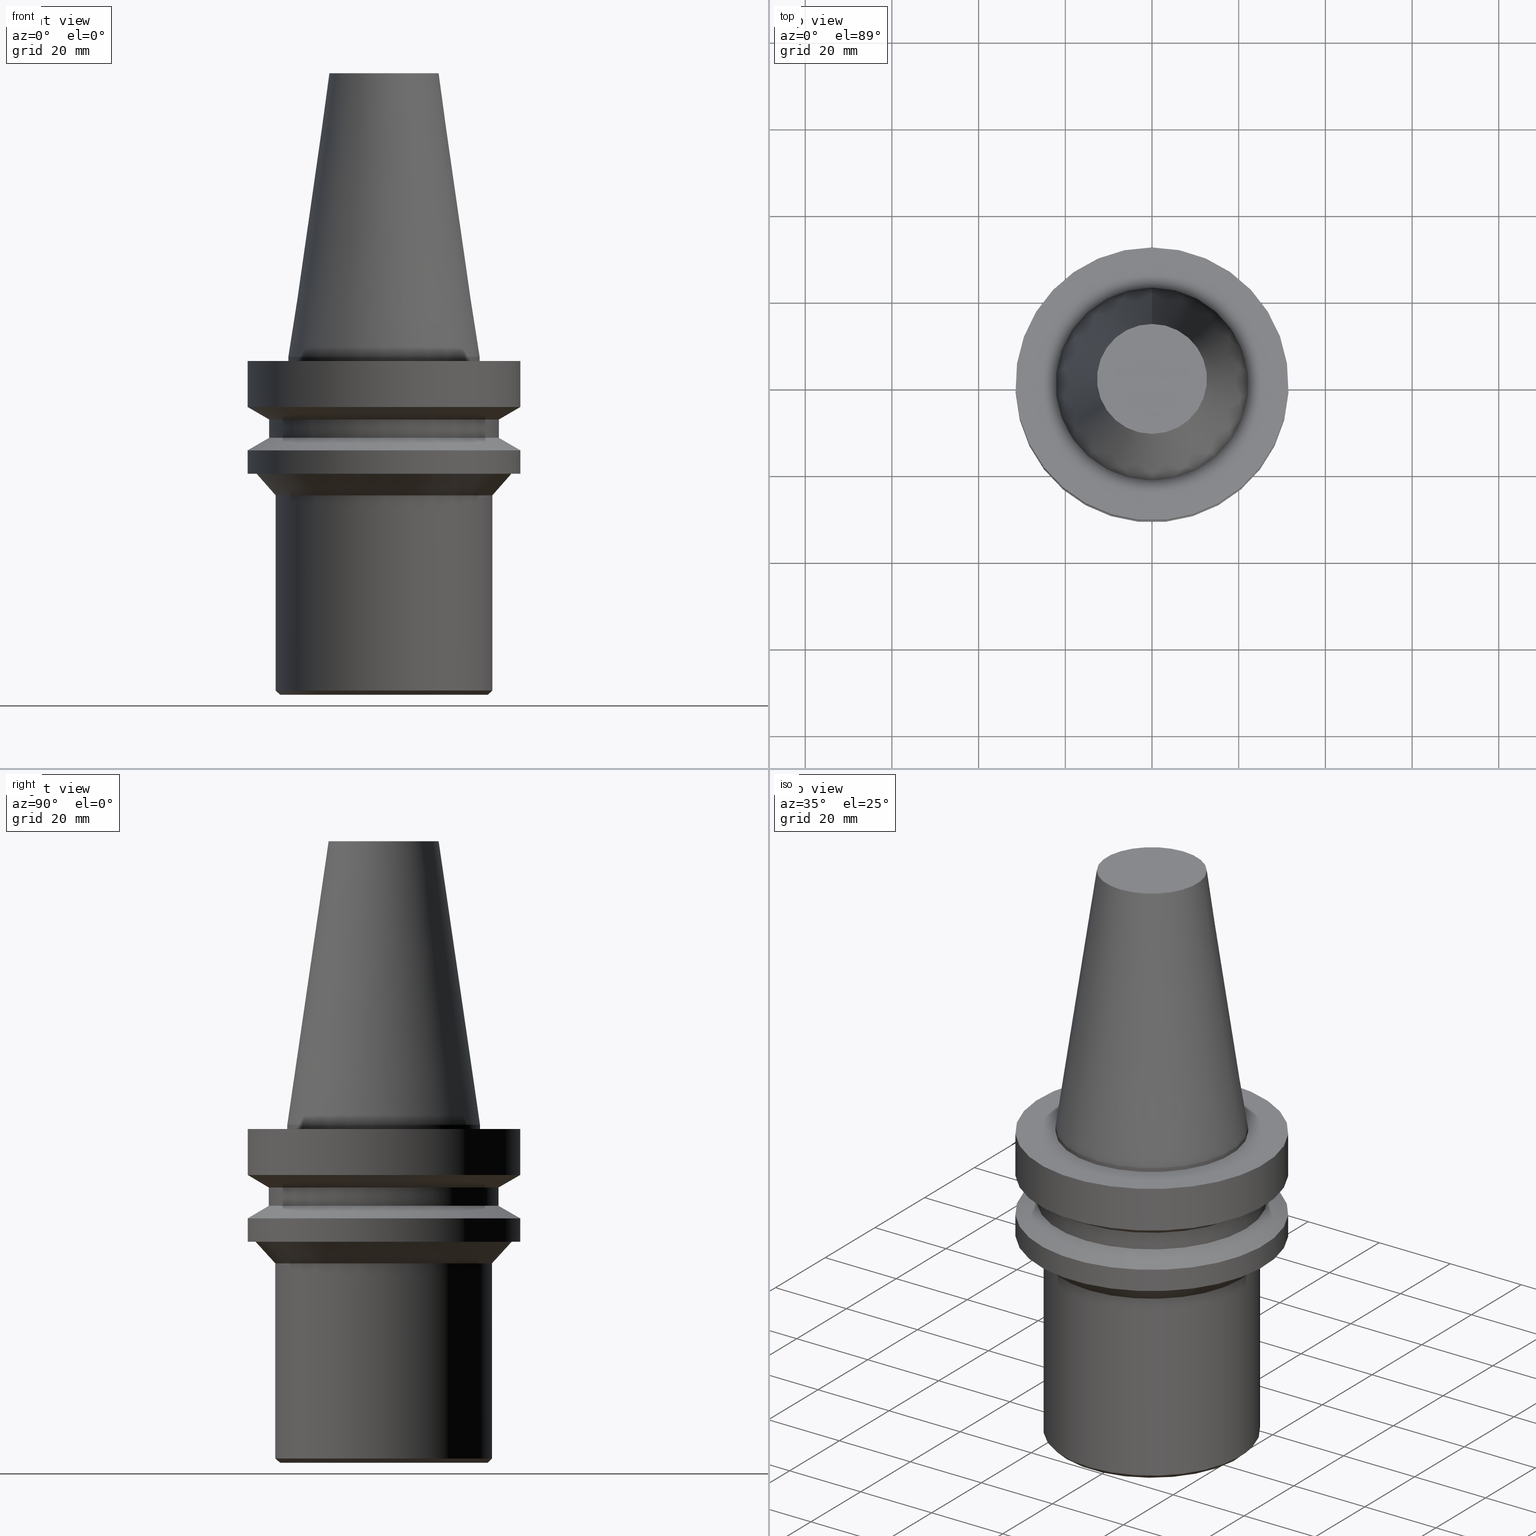
[diagram: canonical four-view strip — front | top / right | iso, engineering-drawing reading convention]
A machine part, canonical four-view strip (front | top / right | iso — engineering-drawing reading convention). The complete STEP part file that produces these views, byte-faithful:
ISO-10303-21;
HEADER;
FILE_DESCRIPTION((''),'1');
FILE_NAME('//Big_tech03/bigt/Translate/21_\X2\8F2A90ED7DDA\X0\-DXF/21_CK\X2\30DC30FC30EA30F330B030B730B930C630E0\X0\/01_CK\X2\30D930FC30B930DB30EB30C0\X0\ CK/BBT/BBT40/BBT40-CK5-135.stp','2012-05-17T02:08:52',(''),(''),'Spatial Interop R18','Kubotek KeyCreator V8.5.1 (14335)',' ');
FILE_SCHEMA(('CONFIG_CONTROL_DESIGN'));
ENDSEC;
DATA;
#1=DESIGN_CONTEXT('',#27,'design');
#2=APPLICATION_PROTOCOL_DEFINITION('INTERNATIONAL STANDARD','config_control_design',1994,#27);
#3=PRODUCT_CATEGORY_RELATIONSHIP('NONE','NONE',#28,#29);
#4=DATE_AND_TIME(#30,#31);
#5=DATE_TIME_ROLE('creation_date');
#6=DATE_TIME_ROLE('classification_date');
#7=PERSON_AND_ORGANIZATION_ROLE('creator');
#8=PERSON_AND_ORGANIZATION_ROLE('design_supplier');
#9=PERSON_AND_ORGANIZATION_ROLE('classification_officer');
#10=PERSON_AND_ORGANIZATION_ROLE('design_owner');
#11=APPROVAL_PERSON_ORGANIZATION(#32,#33,#34);
#12=APPROVAL_DATE_TIME(#4,#33);
#13=CC_DESIGN_APPROVAL(#33,(#35,#36,#37));
#14=CC_DESIGN_DATE_AND_TIME_ASSIGNMENT(#4,#5,(#37));
#15=CC_DESIGN_DATE_AND_TIME_ASSIGNMENT(#4,#6,(#35));
#16=CC_DESIGN_PERSON_AND_ORGANIZATION_ASSIGNMENT(#32,#10,(#38));
#17=CC_DESIGN_PERSON_AND_ORGANIZATION_ASSIGNMENT(#32,#7,(#37));
#18=CC_DESIGN_PERSON_AND_ORGANIZATION_ASSIGNMENT(#32,#7,(#36));
#19=CC_DESIGN_PERSON_AND_ORGANIZATION_ASSIGNMENT(#32,#8,(#36));
#20=CC_DESIGN_SECURITY_CLASSIFICATION(#35,(#36));
#21=CC_DESIGN_PERSON_AND_ORGANIZATION_ASSIGNMENT(#32,#9,(#35));
#22=SHAPE_DEFINITION_REPRESENTATION(#39,#40);
#23= (GEOMETRIC_REPRESENTATION_CONTEXT(3)GLOBAL_UNCERTAINTY_ASSIGNED_CONTEXT((#43))GLOBAL_UNIT_ASSIGNED_CONTEXT((#45,#46,#47))REPRESENTATION_CONTEXT('NONE','WORKSPACE'));
#27=APPLICATION_CONTEXT('CONFIGURATION CONTROLLED 3D DESIGNS OF MECHANICAL PARTS AND ASSEMBLIES');
#28=PRODUCT_CATEGORY('part','NONE');
#29=PRODUCT_RELATED_PRODUCT_CATEGORY('detail',' ',(#38));
#30=CALENDAR_DATE(2012,17,4);
#31=LOCAL_TIME(11,8,52.0,#49);
#32=PERSON_AND_ORGANIZATION(#50,#51);
#33=APPROVAL(#52,'SOLID MODEL');
#34=APPROVAL_ROLE('APPROVED');
#35=SECURITY_CLASSIFICATION('','',#53);
#36=PRODUCT_DEFINITION_FORMATION_WITH_SPECIFIED_SOURCE(' ','NONE',#38,.NOT_KNOWN.);
#37=PRODUCT_DEFINITION('NONE','NONE',#36,#1);
#38=PRODUCT('1','1','PART-1-DESC',(#54));
#39=PRODUCT_DEFINITION_SHAPE('NONE','NONE',#37);
#40=ADVANCED_BREP_SHAPE_REPRESENTATION('1',(#55,#56),#23);
#43=UNCERTAINTY_MEASURE_WITH_UNIT(LENGTH_MEASURE(1.0E-006),#45,'','');
#45= (CONVERSION_BASED_UNIT('MILLIMETRE',#59)LENGTH_UNIT()NAMED_UNIT(#62));
#46= (NAMED_UNIT(#64)PLANE_ANGLE_UNIT()SI_UNIT($,.RADIAN.));
#47= (NAMED_UNIT(#64)SOLID_ANGLE_UNIT()SI_UNIT($,.STERADIAN.));
#49=COORDINATED_UNIVERSAL_TIME_OFFSET(9,0,.AHEAD.);
#50=PERSON('','UNSPECIFIED',$,$,$,$);
#51=ORGANIZATION('UNSPECIFIED','UNSPECIFIED','UNSPECIFIED');
#52=APPROVAL_STATUS('approved');
#53=SECURITY_CLASSIFICATION_LEVEL('unclassified');
#54=MECHANICAL_CONTEXT('',#27,'mechanical');
#55=MANIFOLD_SOLID_BREP('1',#70);
#56=AXIS2_PLACEMENT_3D('',#71,#72,#73);
#59=LENGTH_MEASURE_WITH_UNIT(LENGTH_MEASURE(1.0),#74);
#62=DIMENSIONAL_EXPONENTS(1.0,0.0,0.0,0.0,0.0,0.0,0.0);
#64=DIMENSIONAL_EXPONENTS(0.0,0.0,0.0,0.0,0.0,0.0,0.0);
#70=CLOSED_SHELL('',(#75,#76,#77,#78,#79,#80,#81,#82,#83,#84,#85,#86,#87,#88));
#71=CARTESIAN_POINT('',(0.0,0.0,0.0));
#72=DIRECTION('',(0.0,0.0,1.0));
#73=DIRECTION('',(1.0,0.0,0.0));
#74= (NAMED_UNIT(#62)LENGTH_UNIT()SI_UNIT(.MILLI.,.METRE.));
#75=ADVANCED_FACE('',(#90,#91),#92,.T.);
#76=ADVANCED_FACE('',(#93,#94),#95,.T.);
#77=ADVANCED_FACE('',(#96,#97),#98,.T.);
#78=ADVANCED_FACE('',(#99,#100),#101,.T.);
#79=ADVANCED_FACE('',(#102,#103),#104,.T.);
#80=ADVANCED_FACE('',(#105,#106),#107,.T.);
#81=ADVANCED_FACE('',(#108),#109,.T.);
#82=ADVANCED_FACE('',(#110,#111),#112,.T.);
#83=ADVANCED_FACE('',(#113),#114,.T.);
#84=ADVANCED_FACE('',(#115,#116),#117,.T.);
#85=ADVANCED_FACE('',(#118,#119),#120,.T.);
#86=ADVANCED_FACE('',(#121,#122),#123,.T.);
#87=ADVANCED_FACE('',(#124,#125),#126,.T.);
#88=ADVANCED_FACE('',(#127,#128),#129,.T.);
#90=FACE_BOUND('',#130,.T.);
#91=FACE_BOUND('',#131,.T.);
#92=CONICAL_SURFACE('',#132,29.0,1.0471975511966);
#93=FACE_BOUND('',#133,.T.);
#94=FACE_BOUND('',#134,.T.);
#95=CYLINDRICAL_SURFACE('',#135,31.5000000000002);
#96=FACE_BOUND('',#136,.T.);
#97=FACE_OUTER_BOUND('',#137,.T.);
#98=PLANE('',#138);
#99=FACE_BOUND('',#139,.T.);
#100=FACE_BOUND('',#140,.T.);
#101=CONICAL_SURFACE('',#141,27.2718200035607,0.739698563021532);
#102=FACE_BOUND('',#142,.T.);
#103=FACE_BOUND('',#143,.T.);
#104=CYLINDRICAL_SURFACE('',#144,25.0);
#105=FACE_BOUND('',#145,.T.);
#106=FACE_BOUND('',#146,.T.);
#107=CONICAL_SURFACE('',#147,24.5,0.785398163397448);
#108=FACE_OUTER_BOUND('',#148,.T.);
#109=PLANE('',#149);
#110=FACE_BOUND('',#150,.T.);
#111=FACE_BOUND('',#151,.T.);
#112=CYLINDRICAL_SURFACE('',#152,26.5000000000001);
#113=FACE_OUTER_BOUND('',#153,.T.);
#114=PLANE('',#154);
#115=FACE_BOUND('',#155,.T.);
#116=FACE_BOUND('',#156,.T.);
#117=CONICAL_SURFACE('',#157,17.45625,0.144812498238939);
#118=FACE_BOUND('',#158,.T.);
#119=FACE_BOUND('',#159,.T.);
#120=CYLINDRICAL_SURFACE('',#160,22.225);
#121=FACE_OUTER_BOUND('',#161,.T.);
#122=FACE_BOUND('',#162,.T.);
#123=PLANE('',#163);
#124=FACE_BOUND('',#164,.T.);
#125=FACE_BOUND('',#165,.T.);
#126=CYLINDRICAL_SURFACE('',#166,31.5000000000001);
#127=FACE_BOUND('',#167,.T.);
#128=FACE_BOUND('',#168,.T.);
#129=CONICAL_SURFACE('',#169,29.0000000000001,1.04719755119661);
#130=EDGE_LOOP('',(#170));
#131=EDGE_LOOP('',(#171));
#132=AXIS2_PLACEMENT_3D('',#172,#173,#174);
#133=EDGE_LOOP('',(#175));
#134=EDGE_LOOP('',(#176));
#135=AXIS2_PLACEMENT_3D('',#177,#178,#179);
#136=EDGE_LOOP('',(#180));
#137=EDGE_LOOP('',(#181));
#138=AXIS2_PLACEMENT_3D('',#182,#183,#184);
#139=EDGE_LOOP('',(#185));
#140=EDGE_LOOP('',(#186));
#141=AXIS2_PLACEMENT_3D('',#187,#188,#189);
#142=EDGE_LOOP('',(#190));
#143=EDGE_LOOP('',(#191));
#144=AXIS2_PLACEMENT_3D('',#192,#193,#194);
#145=EDGE_LOOP('',(#195));
#146=EDGE_LOOP('',(#196));
#147=AXIS2_PLACEMENT_3D('',#197,#198,#199);
#148=EDGE_LOOP('',(#200));
#149=AXIS2_PLACEMENT_3D('',#201,#202,#203);
#150=EDGE_LOOP('',(#204));
#151=EDGE_LOOP('',(#205));
#152=AXIS2_PLACEMENT_3D('',#206,#207,#208);
#153=EDGE_LOOP('',(#209));
#154=AXIS2_PLACEMENT_3D('',#210,#211,#212);
#155=EDGE_LOOP('',(#213));
#156=EDGE_LOOP('',(#214));
#157=AXIS2_PLACEMENT_3D('',#215,#216,#217);
#158=EDGE_LOOP('',(#218));
#159=EDGE_LOOP('',(#219));
#160=AXIS2_PLACEMENT_3D('',#220,#221,#222);
#161=EDGE_LOOP('',(#223));
#162=EDGE_LOOP('',(#224));
#163=AXIS2_PLACEMENT_3D('',#225,#226,#227);
#164=EDGE_LOOP('',(#228));
#165=EDGE_LOOP('',(#229));
#166=AXIS2_PLACEMENT_3D('',#230,#231,#232);
#167=EDGE_LOOP('',(#233));
#168=EDGE_LOOP('',(#234));
#169=AXIS2_PLACEMENT_3D('',#235,#236,#237);
#170=ORIENTED_EDGE('',*,*,#238,.F.);
#171=ORIENTED_EDGE('',*,*,#239,.T.);
#172=CARTESIAN_POINT('',(1.23423727318539E-015,2.46847454637079E-015,-20.1566243270258));
#173=DIRECTION('',(6.12323399573676E-017,1.22464679914735E-016,-1.0));
#174=DIRECTION('',(-1.23259516440783E-032,1.0,1.22464679914735E-016));
#175=ORIENTED_EDGE('',*,*,#240,.F.);
#176=ORIENTED_EDGE('',*,*,#238,.T.);
#177=CARTESIAN_POINT('',(1.48794586096403E-015,2.97589172192806E-015,-24.2999999999999));
#178=DIRECTION('',(-6.12323399573677E-017,-1.22464679914735E-016,1.0));
#179=DIRECTION('',(-1.23259516440783E-032,1.0,1.22464679914735E-016));
#180=ORIENTED_EDGE('',*,*,#241,.F.);
#181=ORIENTED_EDGE('',*,*,#240,.T.);
#182=CARTESIAN_POINT('',(1.65327317884893E-015,30.521820003561,-27.0));
#183=DIRECTION('',(6.12323399573677E-017,1.22464679914735E-016,-1.0));
#184=DIRECTION('',(-1.23259516440783E-032,1.0,1.22464679914735E-016));
#185=ORIENTED_EDGE('',*,*,#242,.F.);
#186=ORIENTED_EDGE('',*,*,#241,.T.);
#187=CARTESIAN_POINT('',(1.80571506927489E-015,3.61143013854978E-015,-29.489565));
#188=DIRECTION('',(-6.12323399573676E-017,-1.22464679914735E-016,1.0));
#189=DIRECTION('',(-1.23259516440783E-032,1.0,1.22464679914735E-016));
#190=ORIENTED_EDGE('',*,*,#243,.F.);
#191=ORIENTED_EDGE('',*,*,#242,.T.);
#192=CARTESIAN_POINT('',(3.33652356820908E-015,6.67304713641816E-015,-54.489565));
#193=DIRECTION('',(-6.12323399573677E-017,-1.22464679914735E-016,1.0));
#194=DIRECTION('',(-1.23259516440783E-032,1.0,1.22464679914735E-016));
#195=ORIENTED_EDGE('',*,*,#244,.F.);
#196=ORIENTED_EDGE('',*,*,#243,.T.);
#197=CARTESIAN_POINT('',(4.74550634669599E-015,9.49101269339199E-015,-77.5));
#198=DIRECTION('',(-6.12323399573677E-017,-1.22464679914735E-016,1.0));
#199=DIRECTION('',(-1.23259516440783E-032,1.0,1.22464679914735E-016));
#200=ORIENTED_EDGE('',*,*,#244,.T.);
#201=CARTESIAN_POINT('',(4.77612251667468E-015,12.0,-78.0));
#202=DIRECTION('',(6.12323399573677E-017,1.22464679914735E-016,-1.0));
#203=DIRECTION('',(-1.23259516440783E-032,1.0,1.22464679914735E-016));
#204=ORIENTED_EDGE('',*,*,#239,.F.);
#205=ORIENTED_EDGE('',*,*,#245,.T.);
#206=CARTESIAN_POINT('',(1.0164568432923E-015,2.03291368658459E-015,-16.5999999999999));
#207=DIRECTION('',(-6.12323399573677E-017,-1.22464679914735E-016,1.0));
#208=DIRECTION('',(-1.23259516440783E-032,1.0,1.22464679914735E-016));
#209=ORIENTED_EDGE('',*,*,#246,.F.);
#210=CARTESIAN_POINT('',(-4.00459503321184E-015,6.34375,65.4));
#211=DIRECTION('',(-6.12323399573677E-017,-1.22464679914735E-016,1.0));
#212=DIRECTION('',(1.23259516440783E-032,-1.0,-1.22464679914735E-016));
#213=ORIENTED_EDGE('',*,*,#247,.F.);
#214=ORIENTED_EDGE('',*,*,#246,.T.);
#215=CARTESIAN_POINT('',(-2.00229751660592E-015,-4.00459503321185E-015,32.7));
#216=DIRECTION('',(6.12323399573677E-017,1.22464679914735E-016,-1.0));
#217=DIRECTION('',(-1.23259516440783E-032,1.0,1.22464679914735E-016));
#218=ORIENTED_EDGE('',*,*,#248,.F.);
#219=ORIENTED_EDGE('',*,*,#247,.T.);
#220=CARTESIAN_POINT('',(3.06161699786803E-017,6.12323399573607E-017,-0.499999999999943));
#221=DIRECTION('',(-6.12323399573677E-017,-1.22464679914735E-016,1.0));
#222=DIRECTION('',(-1.23259516440783E-032,1.0,1.22464679914735E-016));
#223=ORIENTED_EDGE('',*,*,#249,.F.);
#224=ORIENTED_EDGE('',*,*,#248,.T.);
#225=CARTESIAN_POINT('',(6.12323399573638E-017,26.8625,-0.999999999999939));
#226=DIRECTION('',(-6.12323399573677E-017,-1.22464679914735E-016,1.0));
#227=DIRECTION('',(1.23259516440783E-032,-1.0,-1.22464679914735E-016));
#228=ORIENTED_EDGE('',*,*,#250,.F.);
#229=ORIENTED_EDGE('',*,*,#249,.T.);
#230=CARTESIAN_POINT('',(3.85763741731412E-016,7.71527483462825E-016,-6.29999999999994));
#231=DIRECTION('',(-6.12323399573677E-017,-1.22464679914735E-016,1.0));
#232=DIRECTION('',(-1.23259516440783E-032,1.0,1.22464679914735E-016));
#233=ORIENTED_EDGE('',*,*,#245,.F.);
#234=ORIENTED_EDGE('',*,*,#250,.T.);
#235=CARTESIAN_POINT('',(7.98676413399201E-016,1.5973528267984E-015,-13.043375672974));
#236=DIRECTION('',(-6.12323399573677E-017,-1.22464679914735E-016,1.0));
#237=DIRECTION('',(-1.23259516440783E-032,1.0,1.22464679914735E-016));
#238=EDGE_CURVE('',#251,#251,#252,.T.);
#239=EDGE_CURVE('',#253,#253,#254,.T.);
#240=EDGE_CURVE('',#255,#255,#256,.T.);
#241=EDGE_CURVE('',#257,#257,#258,.T.);
#242=EDGE_CURVE('',#259,#259,#260,.T.);
#243=EDGE_CURVE('',#261,#261,#262,.T.);
#244=EDGE_CURVE('',#263,#263,#264,.T.);
#245=EDGE_CURVE('',#265,#265,#266,.T.);
#246=EDGE_CURVE('',#267,#267,#268,.T.);
#247=EDGE_CURVE('',#269,#269,#270,.T.);
#248=EDGE_CURVE('',#271,#271,#272,.T.);
#249=EDGE_CURVE('',#273,#273,#274,.T.);
#250=EDGE_CURVE('',#275,#275,#276,.T.);
#251=VERTEX_POINT('',#277);
#252=CIRCLE('',#278,31.5);
#253=VERTEX_POINT('',#279);
#254=CIRCLE('',#280,26.5000000000001);
#255=VERTEX_POINT('',#281);
#256=CIRCLE('',#282,31.5000000000004);
#257=VERTEX_POINT('',#283);
#258=CIRCLE('',#284,29.5436400071215);
#259=VERTEX_POINT('',#285);
#260=CIRCLE('',#286,25.0);
#261=VERTEX_POINT('',#287);
#262=CIRCLE('',#288,25.0);
#263=VERTEX_POINT('',#289);
#264=CIRCLE('',#290,24.0);
#265=VERTEX_POINT('',#291);
#266=CIRCLE('',#292,26.5000000000001);
#267=VERTEX_POINT('',#293);
#268=CIRCLE('',#294,12.6875);
#269=VERTEX_POINT('',#295);
#270=CIRCLE('',#296,22.225);
#271=VERTEX_POINT('',#297);
#272=CIRCLE('',#298,22.225);
#273=VERTEX_POINT('',#299);
#274=CIRCLE('',#300,31.5000000000001);
#275=VERTEX_POINT('',#301);
#276=CIRCLE('',#302,31.5000000000001);
#277=CARTESIAN_POINT('',(1.32261854307913E-015,31.5,-21.5999999999999));
#278=AXIS2_PLACEMENT_3D('',#303,#304,#305);
#279=CARTESIAN_POINT('',(1.14585600329165E-015,26.5000000000001,-18.7132486540518));
#280=AXIS2_PLACEMENT_3D('',#306,#307,#308);
#281=CARTESIAN_POINT('',(1.65327317884893E-015,31.5000000000004,-27.0));
#282=AXIS2_PLACEMENT_3D('',#309,#310,#311);
#283=CARTESIAN_POINT('',(1.65327317884893E-015,29.5436400071215,-27.0));
#284=AXIS2_PLACEMENT_3D('',#312,#313,#314);
#285=CARTESIAN_POINT('',(1.95815695970085E-015,25.0,-31.97913));
#286=AXIS2_PLACEMENT_3D('',#315,#316,#317);
#287=CARTESIAN_POINT('',(4.71489017671731E-015,25.0,-77.0));
#288=AXIS2_PLACEMENT_3D('',#318,#319,#320);
#289=CARTESIAN_POINT('',(4.77612251667468E-015,24.0,-78.0));
#290=AXIS2_PLACEMENT_3D('',#321,#322,#323);
#291=CARTESIAN_POINT('',(8.87057683292942E-016,26.5000000000001,-14.486751345948));
#292=AXIS2_PLACEMENT_3D('',#324,#325,#326);
#293=CARTESIAN_POINT('',(-4.00459503321184E-015,12.6875,65.4));
#294=AXIS2_PLACEMENT_3D('',#327,#328,#329);
#295=CARTESIAN_POINT('',(-3.75194118486812E-030,22.225,5.9521777511105E-014));
#296=AXIS2_PLACEMENT_3D('',#330,#331,#332);
#297=CARTESIAN_POINT('',(6.12323399573639E-017,22.225,-0.99999999999994));
#298=AXIS2_PLACEMENT_3D('',#333,#334,#335);
#299=CARTESIAN_POINT('',(6.12323399573638E-017,31.5000000000001,-0.999999999999939));
#300=AXIS2_PLACEMENT_3D('',#336,#337,#338);
#301=CARTESIAN_POINT('',(7.1029514350546E-016,31.5000000000001,-11.5999999999999));
#302=AXIS2_PLACEMENT_3D('',#339,#340,#341);
#303=CARTESIAN_POINT('',(1.32261854307913E-015,2.64523708615827E-015,-21.5999999999999));
#304=DIRECTION('',(6.12323399573677E-017,1.22464679914735E-016,-1.0));
#305=DIRECTION('',(-1.23259516440783E-032,1.0,1.22464679914735E-016));
#306=CARTESIAN_POINT('',(1.14585600329165E-015,2.2917120065833E-015,-18.7132486540518));
#307=DIRECTION('',(6.12323399573677E-017,1.22464679914735E-016,-1.0));
#308=DIRECTION('',(-1.23259516440783E-032,1.0,1.22464679914735E-016));
#309=CARTESIAN_POINT('',(1.65327317884893E-015,3.30654635769785E-015,-27.0));
#310=DIRECTION('',(6.12323399573677E-017,1.22464679914735E-016,-1.0));
#311=DIRECTION('',(-1.23259516440783E-032,1.0,1.22464679914735E-016));
#312=CARTESIAN_POINT('',(1.65327317884893E-015,3.30654635769785E-015,-27.0));
#313=DIRECTION('',(6.12323399573677E-017,1.22464679914735E-016,-1.0));
#314=DIRECTION('',(-1.23259516440783E-032,1.0,1.22464679914735E-016));
#315=CARTESIAN_POINT('',(1.95815695970085E-015,3.91631391940171E-015,-31.97913));
#316=DIRECTION('',(6.12323399573677E-017,1.22464679914735E-016,-1.0));
#317=DIRECTION('',(-1.23259516440783E-032,1.0,1.22464679914735E-016));
#318=CARTESIAN_POINT('',(4.71489017671731E-015,9.42978035343462E-015,-77.0));
#319=DIRECTION('',(6.12323399573677E-017,1.22464679914735E-016,-1.0));
#320=DIRECTION('',(-1.23259516440783E-032,1.0,1.22464679914735E-016));
#321=CARTESIAN_POINT('',(4.77612251667468E-015,9.55224503334935E-015,-78.0));
#322=DIRECTION('',(6.12323399573677E-017,1.22464679914735E-016,-1.0));
#323=DIRECTION('',(-1.23259516440783E-032,1.0,1.22464679914735E-016));
#324=CARTESIAN_POINT('',(8.87057683292942E-016,1.77411536658588E-015,-14.486751345948));
#325=DIRECTION('',(6.12323399573677E-017,1.22464679914735E-016,-1.0));
#326=DIRECTION('',(-1.23259516440783E-032,1.0,1.22464679914735E-016));
#327=CARTESIAN_POINT('',(-4.00459503321184E-015,-8.00919006642369E-015,65.4));
#328=DIRECTION('',(6.12323399573676E-017,1.22464679914735E-016,-1.0));
#329=DIRECTION('',(-1.23259516440783E-032,1.0,1.22464679914735E-016));
#330=CARTESIAN_POINT('',(-3.48065554802404E-030,-6.96131109604808E-030,5.6843418860808E-014));
#331=DIRECTION('',(6.12323399573677E-017,1.22464679914735E-016,-1.0));
#332=DIRECTION('',(-1.23259516440783E-032,1.0,1.22464679914735E-016));
#333=CARTESIAN_POINT('',(6.12323399573642E-017,1.22464679914728E-016,-0.999999999999943));
#334=DIRECTION('',(6.12323399573677E-017,1.22464679914735E-016,-1.0));
#335=DIRECTION('',(-1.23259516440783E-032,1.0,1.22464679914735E-016));
#336=CARTESIAN_POINT('',(6.12323399573642E-017,1.22464679914728E-016,-0.999999999999943));
#337=DIRECTION('',(6.12323399573677E-017,1.22464679914735E-016,-1.0));
#338=DIRECTION('',(-1.23259516440783E-032,1.0,1.22464679914735E-016));
#339=CARTESIAN_POINT('',(7.10295143505461E-016,1.42059028701092E-015,-11.5999999999999));
#340=DIRECTION('',(6.12323399573677E-017,1.22464679914735E-016,-1.0));
#341=DIRECTION('',(-1.23259516440783E-032,1.0,1.22464679914735E-016));
ENDSEC;
END-ISO-10303-21;
